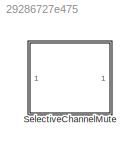
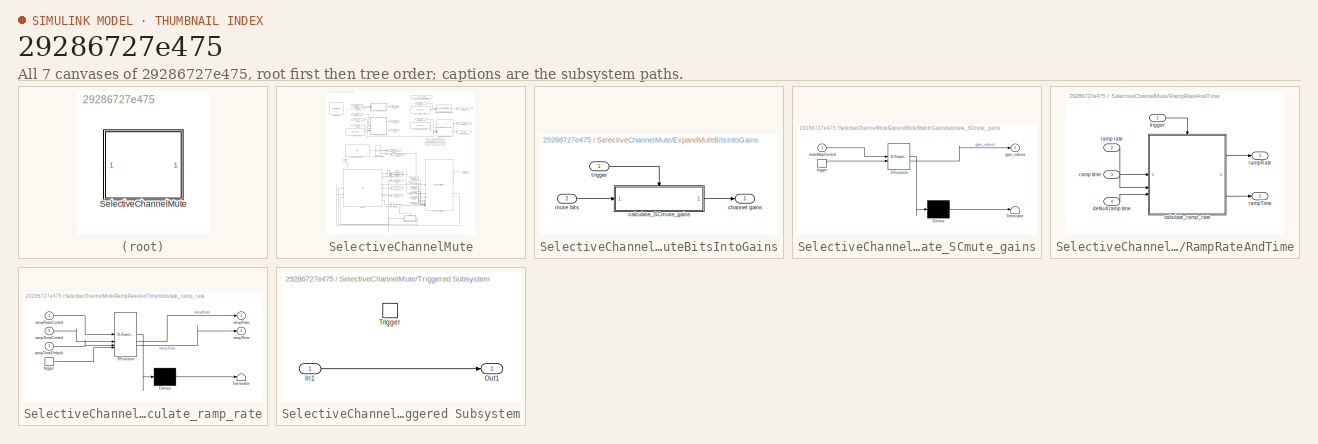
[diagram: thumbnail index - all 7 canvases of the model, root first then tree order]
MODEL slx_29286727e475
KIND library
CONFIG AbsTol = auto
CONFIG EnableMultiTasking = off
CONFIG FixedStep = auto
CONFIG MaxStep = auto
CONFIG MinStep = auto
CONFIG RelTol = 1e-3
CONFIG SampleTimeConstraint = Unconstrained
CONFIG SolverName = VariableStepAuto
CONFIG StartTime = 0.0
CONFIG StopTime = 10.0
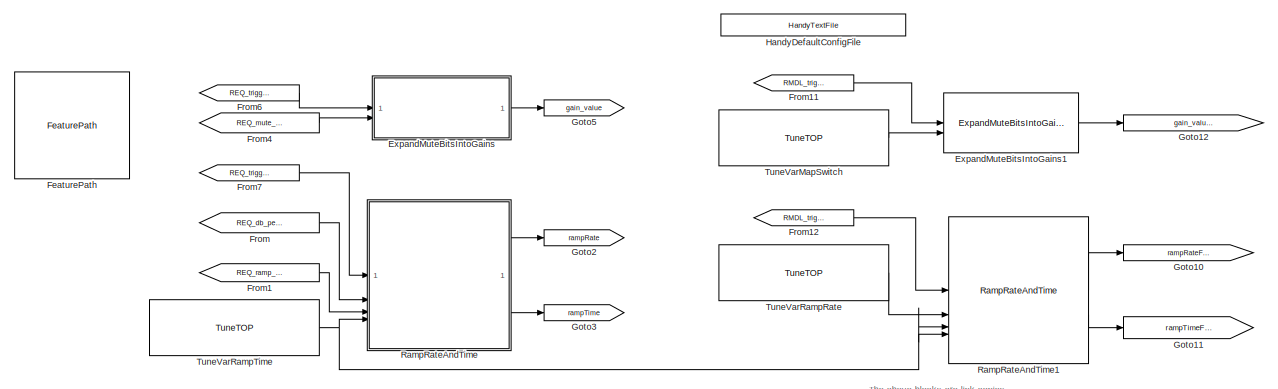
[diagram: SelectiveChannelMute - part 1/2, full width, top band]
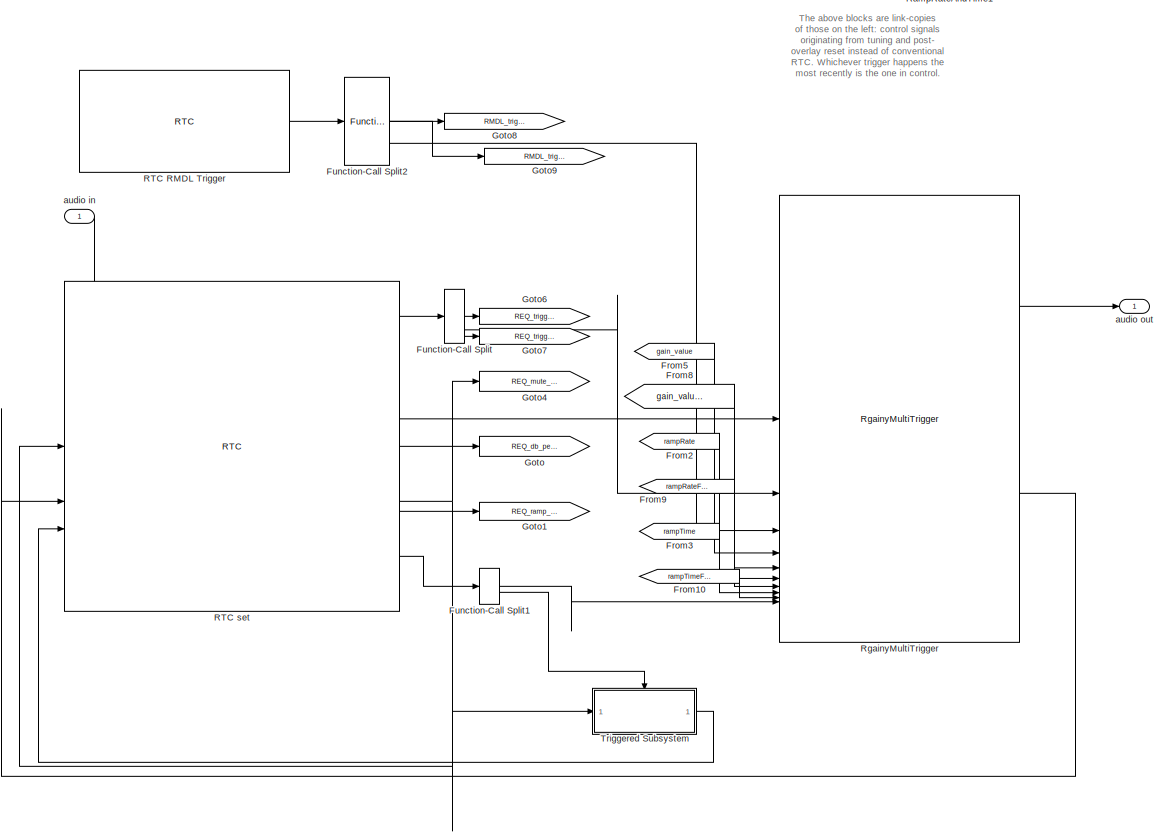
[diagram: SelectiveChannelMute - part 2/2, full width, middle band]
BLOCK [SubSystem] SelectiveChannelMute
BLOCK [SubSystem] SelectiveChannelMute/ExpandMuteBitsIntoGains
BLOCK [SubSystem] SelectiveChannelMute/ExpandMuteBitsIntoGains/calculate_SCmute_gains
  ErrorFcn = Stateflow.Translate.translate
  PermitHierarchicalResolution = ExplicitOnly
  SFBlockType = MATLAB Function
  TreatAsAtomicUnit = on
BLOCK [Demux] SelectiveChannelMute/ExpandMuteBitsIntoGains/calculate_SCmute_gains/ Demux 
  Outputs = 1
BLOCK [S-Function] SelectiveChannelMute/ExpandMuteBitsIntoGains/calculate_SCmute_gains/ SFunction 
  EnableBusSupport = off
  FunctionName = sf_sfun
  Parameters = MaskNumChannels
  PortCounts = [2 2]
  SFcnIsStateOwnerBlock = off
  SFunctionDeploymentMode = off
  Tag = Stateflow S-Function 13
BLOCK [Terminator] SelectiveChannelMute/ExpandMuteBitsIntoGains/calculate_SCmute_gains/ Terminator 
BLOCK [Outport] SelectiveChannelMute/ExpandMuteBitsIntoGains/calculate_SCmute_gains/gain_values
  VectorParamsAs1DForOutWhenUnconnected = off
BLOCK [Inport] SelectiveChannelMute/ExpandMuteBitsIntoGains/calculate_SCmute_gains/muteMapSwitch
BLOCK [TriggerPort] SelectiveChannelMute/ExpandMuteBitsIntoGains/calculate_SCmute_gains/trigger
  ShowOutputPort = on
  StatesWhenEnabling = held
  TriggerType = function-call
  VariantControl = Variant
BLOCK [Outport] SelectiveChannelMute/ExpandMuteBitsIntoGains/channel gains
BLOCK [Inport] SelectiveChannelMute/ExpandMuteBitsIntoGains/mute bits
  Port = 2
BLOCK [Inport] SelectiveChannelMute/ExpandMuteBitsIntoGains/trigger
BLOCK [Reference] SelectiveChannelMute/ExpandMuteBitsIntoGains1  REF=$bdroot/SelectiveChannelMute/ExpandMuteBitsIntoGains
  SourceBlock = $bdroot/SelectiveChannelMute/ExpandMuteBitsIntoGains
  SourceType = SubSystem
BLOCK [Reference] SelectiveChannelMute/FeaturePath  REF=FeaturePath/FeaturePath
  SourceBlock = FeaturePath/FeaturePath
  SourceProductName = Bose Talaria
  SourceType = Talaria Feature Path
BLOCK [From] SelectiveChannelMute/From
  GotoTag = REQ_db_per_second
BLOCK [From] SelectiveChannelMute/From1
  GotoTag = REQ_ramp_ms
BLOCK [From] SelectiveChannelMute/From10
  GotoTag = rampTimeFromTOP
BLOCK [From] SelectiveChannelMute/From11
  GotoTag = RMDL_trigger_gain
BLOCK [From] SelectiveChannelMute/From12
  GotoTag = RMDL_trigger_ramp
BLOCK [From] SelectiveChannelMute/From2
  GotoTag = rampRate
BLOCK [From] SelectiveChannelMute/From3
  GotoTag = rampTime
BLOCK [From] SelectiveChannelMute/From4
  GotoTag = REQ_mute_map_switch
BLOCK [From] SelectiveChannelMute/From5
  GotoTag = gain_value
BLOCK [From] SelectiveChannelMute/From6
  GotoTag = REQ_trigger_gain
BLOCK [From] SelectiveChannelMute/From7
  GotoTag = REQ_trigger_ramp
BLOCK [From] SelectiveChannelMute/From8
  GotoTag = gain_value_from_TOP
BLOCK [From] SelectiveChannelMute/From9
  GotoTag = rampRateFromTOP
BLOCK [FunctionCallSplit] SelectiveChannelMute/Function-Call Split
  IconShape = distinctive
  NumOutputPorts = 3
BLOCK [FunctionCallSplit] SelectiveChannelMute/Function-Call Split1
  IconShape = distinctive
  NumOutputPorts = 2
  OutputPortLayout = default
BLOCK [FunctionCallSplit] SelectiveChannelMute/Function-Call Split2
  IconShape = distinctive
  NumOutputPorts = 3
BLOCK [Goto] SelectiveChannelMute/Goto
  GotoTag = REQ_db_per_second
BLOCK [Goto] SelectiveChannelMute/Goto1
  GotoTag = REQ_ramp_ms
BLOCK [Goto] SelectiveChannelMute/Goto10
  GotoTag = rampRateFromTOP
BLOCK [Goto] SelectiveChannelMute/Goto11
  GotoTag = rampTimeFromTOP
BLOCK [Goto] SelectiveChannelMute/Goto12
  GotoTag = gain_value_from_TOP
BLOCK [Goto] SelectiveChannelMute/Goto2
  GotoTag = rampRate
BLOCK [Goto] SelectiveChannelMute/Goto3
  GotoTag = rampTime
BLOCK [Goto] SelectiveChannelMute/Goto4
  GotoTag = REQ_mute_map_switch
BLOCK [Goto] SelectiveChannelMute/Goto5
  GotoTag = gain_value
BLOCK [Goto] SelectiveChannelMute/Goto6
  GotoTag = REQ_trigger_gain
BLOCK [Goto] SelectiveChannelMute/Goto7
  GotoTag = REQ_trigger_ramp
BLOCK [Goto] SelectiveChannelMute/Goto8
  GotoTag = RMDL_trigger_gain
BLOCK [Goto] SelectiveChannelMute/Goto9
  GotoTag = RMDL_trigger_ramp
BLOCK [Reference] SelectiveChannelMute/HandyDefaultConfigFile  REF=HandyTextFile/HandyTextFile
  SourceBlock = HandyTextFile/HandyTextFile
  SourceProductName = Bose Talaria
  SourceType = Talaria Handy Text File
BLOCK [Reference] SelectiveChannelMute/RTC RMDL Trigger  REF=RTC/RTC
  SourceBlock = RTC/RTC
  SourceProductName = Bose Talaria
  SourceType = Talaria RTC Receive
BLOCK [Reference] SelectiveChannelMute/RTC set  REF=RTC/RTC
  Description = Command a mute by specifying whether mute is active (non zero mute_switch) or inactive (mute_switch is "0"). If db_per_second is non-zero, it commands the timing of the mute, otherwise the ramp_milliseconds is used.
  SourceBlock = RTC/RTC
  SourceProductName = Bose Talaria
  SourceType = Talaria RTC Receive
BLOCK [SubSystem] SelectiveChannelMute/RampRateAndTime
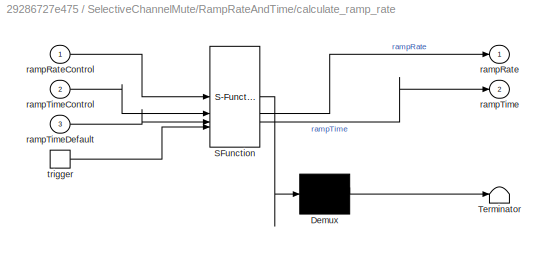
BLOCK [SubSystem] SelectiveChannelMute/RampRateAndTime/calculate_ramp_rate
  ErrorFcn = Stateflow.Translate.translate
  PermitHierarchicalResolution = ExplicitOnly
  SFBlockType = MATLAB Function
  TreatAsAtomicUnit = on
BLOCK [Demux] SelectiveChannelMute/RampRateAndTime/calculate_ramp_rate/ Demux 
  Outputs = 1
BLOCK [S-Function] SelectiveChannelMute/RampRateAndTime/calculate_ramp_rate/ SFunction 
  EnableBusSupport = off
  FunctionName = sf_sfun
  Parameters = rampRateBounds,rampTimeBounds
  PortCounts = [4 3]
  SFcnIsStateOwnerBlock = off
  SFunctionDeploymentMode = off
  Tag = Stateflow S-Function 1
BLOCK [Terminator] SelectiveChannelMute/RampRateAndTime/calculate_ramp_rate/ Terminator 
BLOCK [Outport] SelectiveChannelMute/RampRateAndTime/calculate_ramp_rate/rampRate
  VectorParamsAs1DForOutWhenUnconnected = off
BLOCK [Inport] SelectiveChannelMute/RampRateAndTime/calculate_ramp_rate/rampRateControl
BLOCK [Outport] SelectiveChannelMute/RampRateAndTime/calculate_ramp_rate/rampTime
  Port = 2
  VectorParamsAs1DForOutWhenUnconnected = off
BLOCK [Inport] SelectiveChannelMute/RampRateAndTime/calculate_ramp_rate/rampTimeControl
  Port = 2
BLOCK [Inport] SelectiveChannelMute/RampRateAndTime/calculate_ramp_rate/rampTimeDefault
  Port = 3
BLOCK [TriggerPort] SelectiveChannelMute/RampRateAndTime/calculate_ramp_rate/trigger
  ShowOutputPort = on
  StatesWhenEnabling = held
  TriggerType = function-call
  VariantControl = Variant
BLOCK [Inport] SelectiveChannelMute/RampRateAndTime/default ramp time
  Port = 4
BLOCK [Inport] SelectiveChannelMute/RampRateAndTime/ramp rate
  Port = 2
BLOCK [Inport] SelectiveChannelMute/RampRateAndTime/ramp time
  Port = 3
BLOCK [Outport] SelectiveChannelMute/RampRateAndTime/rampRate
BLOCK [Outport] SelectiveChannelMute/RampRateAndTime/rampTime
  Port = 2
BLOCK [Inport] SelectiveChannelMute/RampRateAndTime/trigger
BLOCK [Reference] SelectiveChannelMute/RampRateAndTime1  REF=$bdroot/SelectiveChannelMute/RampRateAndTime
  SourceBlock = $bdroot/SelectiveChannelMute/RampRateAndTime
  SourceType = SubSystem
BLOCK [Reference] SelectiveChannelMute/RgainyMultiTrigger  REF=RgainyBtc/RgainyMultiTrigger
  SourceBlock = RgainyBtc/RgainyMultiTrigger
  SourceProductName = Bose Blocklib
  SourceType = Blocklib RgainyMultiTrigger
BLOCK [SubSystem] SelectiveChannelMute/Triggered Subsystem
  TreatAsAtomicUnit = on
BLOCK [Inport] SelectiveChannelMute/Triggered Subsystem/In1
BLOCK [Outport] SelectiveChannelMute/Triggered Subsystem/Out1
BLOCK [TriggerPort] SelectiveChannelMute/Triggered Subsystem/Trigger
  StatesWhenEnabling = held
  TriggerType = function-call
  VariantControl = Variant
BLOCK [Reference] SelectiveChannelMute/TuneVarMapSwitch  REF=TuneVar/TuneTOP
  SourceBlock = TuneVar/TuneTOP
  SourceProductName = Bose Talaria
  SourceType = Talaria Trivial Tune TOP
BLOCK [Reference] SelectiveChannelMute/TuneVarRampRate  REF=TuneVar/TuneTOP
  SourceBlock = TuneVar/TuneTOP
  SourceProductName = Bose Talaria
  SourceType = Talaria Trivial Tune TOP
BLOCK [Reference] SelectiveChannelMute/TuneVarRampTime  REF=TuneVar/TuneTOP
  Description = Specifies the default value of ramp time for the Mute or Unmute operation.\nUsed only when the RTC message does not contain either ramp rate or ramp time.
  SourceBlock = TuneVar/TuneTOP
  SourceProductName = Bose Talaria
  SourceType = Talaria Trivial Tune TOP
BLOCK [Inport] SelectiveChannelMute/audio in
BLOCK [Outport] SelectiveChannelMute/audio out
  VectorParamsAs1DForOutWhenUnconnected = off
ANNOTATION SelectiveChannelMute: The above blocks are link-copies of those on the left: control signals originating from tuning and post- overlay reset instead of conventional RTC. Whichever trigger happens the most recently is the one in control. (Note this design likely violates standard RTC control assumptions)
CHART SelectiveChannelMute/RampRateAndTime/calculate_ramp_rate states=1 transitions=1
  STATE_LABEL 'eML_blk_kernel()'
  STATE_LABEL 'SCRIPT:\nfunction [rampRate,rampTime] = Calculate_ramp_parameters(rampRateControl, rampTimeControl, rampTimeDefault,... % Inputs\n    rampRateBounds, rampTimeBounds) % parameters\n\n% Ramp time and rate are provided to the block as control signals. However \n% in case neither of them are provided (e.g. zero), the block will use the\n% default ramp time provided separately often from a tune variable).\n\n ...<+431ch>'
CHART SelectiveChannelMute/ExpandMuteBitsIntoGains/calculate_SCmute_gains states=1 transitions=1
  STATE_LABEL 'eML_blk_kernel()'
  STATE_LABEL 'SCRIPT:\nfunction gain_values = Calculate_SCMute_Gains(muteMapSwitch,MaskNumChannels)\n%#codegen\n% This function takes a uint32 and appropriates gain values to each\n% channel, based on which channel has a 1 (muted) or 0 (unmuted).\n% It works by doing a "bitand" operation, checking each bit against the\n% binary representation of the muteMapSwitch that has been fed in from the\n% RTC / Bam Proxy. Each ...<+462ch>'
CHART  states=0 transitions=0
CHART  states=0 transitions=0
